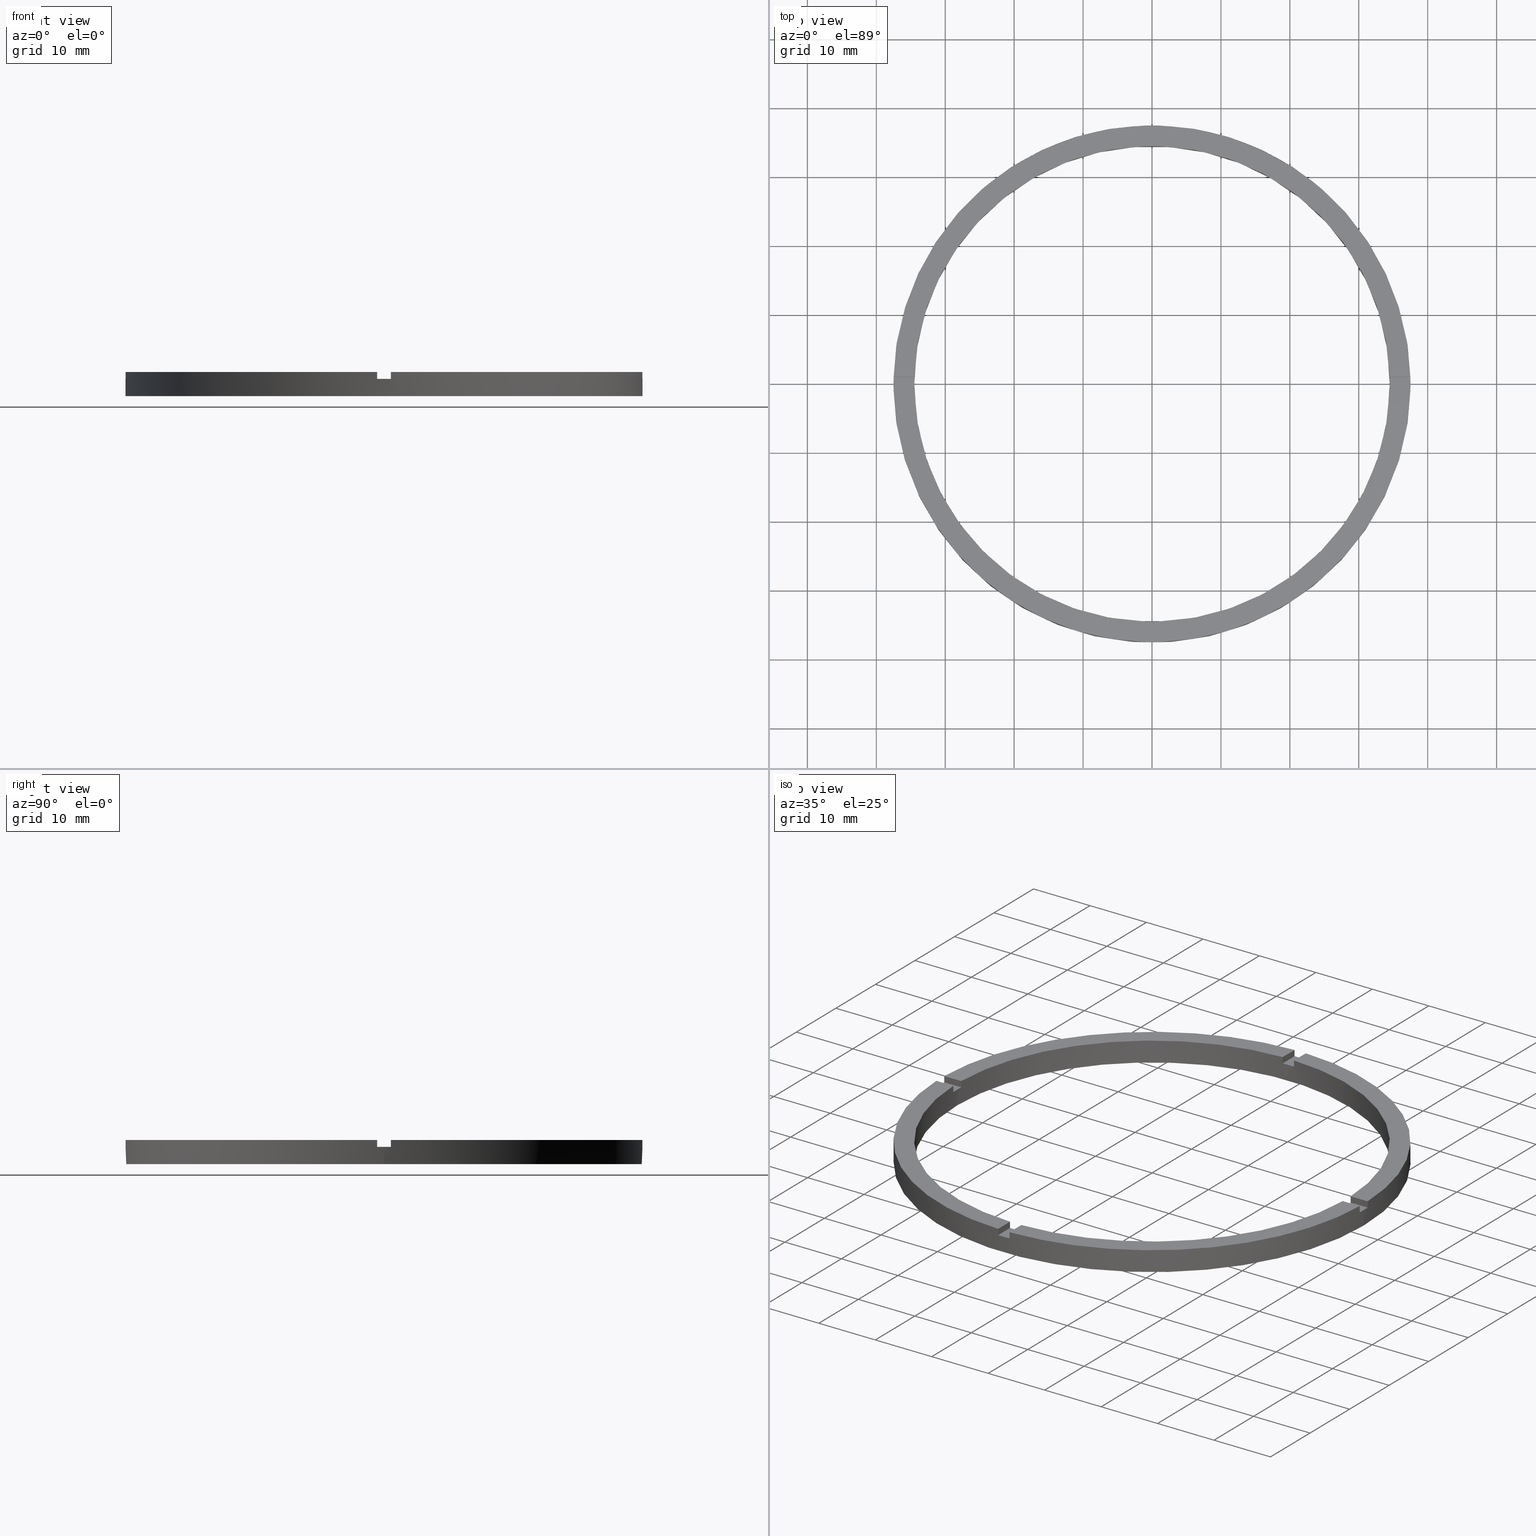
[diagram: canonical four-view strip — front | top / right | iso, engineering-drawing reading convention]
A machine part, canonical four-view strip (front | top / right | iso — engineering-drawing reading convention). The complete STEP part file that produces these views, byte-faithful:
ISO-10303-21;
HEADER;
FILE_DESCRIPTION (( 'STEP AP203' ),
    '1' );
FILE_NAME ('514154.step',
    '2024-12-26T02:42:46',
    ( 'MSI' ),
    ( '' ),
    'SwSTEP 2.0',
    'SolidWorks 2020',
    '' );
FILE_SCHEMA (( 'CONFIG_CONTROL_DESIGN' ));
ENDSEC;

DATA;
#1 = EDGE_CURVE ( 'NONE', #712, #366, #627, .T. ) ;
#2 = EDGE_CURVE ( 'NONE', #450, #456, #379, .T. ) ;
#3 = PLANE ( 'NONE',  #454 ) ;
#4 = DIRECTION ( 'NONE',  ( -1.000000000000000000, -1.951563910473907735E-16, 0.000000000000000000 ) ) ;
#5 = CC_DESIGN_APPROVAL ( #410, ( #257 ) ) ;
#6 = EDGE_CURVE ( 'NONE', #391, #677, #380, .T. ) ;
#7 = VECTOR ( 'NONE', #56, 1000.000000000000000 ) ;
#8 = DIRECTION ( 'NONE',  ( 1.000000000000000000, 0.000000000000000000, 0.000000000000000000 ) ) ;
#9 = CARTESIAN_POINT ( 'NONE',  ( 0.9999999999999746869, 37.48666429545313150, 2.500000000000000000 ) ) ;
#10 = CARTESIAN_POINT ( 'NONE',  ( -37.48666429545312440, -1.000000000000027534, 3.500000000000000000 ) ) ;
#11 = FACE_OUTER_BOUND ( 'NONE', #151, .T. ) ;
#12 = CARTESIAN_POINT ( 'NONE',  ( 0.9999999999998397948, -34.48550420104076153, 3.500000000000000000 ) ) ;
#13 = DIRECTION ( 'NONE',  ( -1.301042606982605074E-16, 1.000000000000000000, -0.000000000000000000 ) ) ;
#14 = AXIS2_PLACEMENT_3D ( 'NONE', #487, #289, #35 ) ;
#15 = VECTOR ( 'NONE', #176, 1000.000000000000000 ) ;
#16 = FACE_OUTER_BOUND ( 'NONE', #89, .T. ) ;
#17 = ADVANCED_FACE ( 'NONE', ( #382 ), #609, .T. ) ;
#18 = AXIS2_PLACEMENT_3D ( 'NONE', #286, #716, #702 ) ;
#19 = LINE ( 'NONE', #103, #15 ) ;
#20 = VECTOR ( 'NONE', #693, 1000.000000000000000 ) ;
#21 = CARTESIAN_POINT ( 'NONE',  ( 0.000000000000000000, 0.000000000000000000, 2.500000000000000000 ) ) ;
#22 = FACE_OUTER_BOUND ( 'NONE', #500, .T. ) ;
#23 = DIRECTION ( 'NONE',  ( -0.000000000000000000, 0.000000000000000000, 1.000000000000000000 ) ) ;
#24 = LINE ( 'NONE', #560, #548 ) ;
#25 = FACE_OUTER_BOUND ( 'NONE', #228, .T. ) ;
#26 = ADVANCED_FACE ( 'NONE', ( #644 ), #421, .F. ) ;
#27 = CARTESIAN_POINT ( 'NONE',  ( -37.48666429545312440, -1.000000000000027534, 2.500000000000000000 ) ) ;
#28 = LINE ( 'NONE', #554, #290 ) ;
#29 = CARTESIAN_POINT ( 'NONE',  ( 37.48666429545313150, 0.9999999999998425704, 3.500000000000000000 ) ) ;
#30 = AXIS2_PLACEMENT_3D ( 'NONE', #58, #139, #757 ) ;
#31 = VECTOR ( 'NONE', #62, 1000.000000000000000 ) ;
#32 = LINE ( 'NONE', #321, #7 ) ;
#33 = CARTESIAN_POINT ( 'NONE',  ( -1.000000000000025313, 34.48550420104075442, 3.500000000000000000 ) ) ;
#34 = LINE ( 'NONE', #247, #306 ) ;
#35 = DIRECTION ( 'NONE',  ( 1.000000000000000000, 1.951563910473907735E-16, 0.000000000000000000 ) ) ;
#36 = CIRCLE ( 'NONE', #122, 37.50000000000000711 ) ;
#37 = CARTESIAN_POINT ( 'NONE',  ( 34.48550420104076153, 0.9999999999998423483, 3.500000000000000000 ) ) ;
#38 = CYLINDRICAL_SURFACE ( 'NONE', #170, 37.50000000000000711 ) ;
#39 = VECTOR ( 'NONE', #557, 1000.000000000000000 ) ;
#40 = EDGE_CURVE ( 'NONE', #755, #392, #679, .T. ) ;
#41 = AXIS2_PLACEMENT_3D ( 'NONE', #575, #181, #568 ) ;
#42 = DIRECTION ( 'NONE',  ( 1.000000000000000000, 0.000000000000000000, 0.000000000000000000 ) ) ;
#43 = CARTESIAN_POINT ( 'NONE',  ( -34.48550420104075442, -1.000000000000026867, 3.500000000000000000 ) ) ;
#44 = DIRECTION ( 'NONE',  ( 0.000000000000000000, 0.000000000000000000, 1.000000000000000000 ) ) ;
#45 = APPROVAL_STATUS ( 'not_yet_approved' ) ;
#46 = CARTESIAN_POINT ( 'NONE',  ( -1.000000000000160316, -34.48550420104075442, 3.500000000000000000 ) ) ;
#47 = EDGE_CURVE ( 'NONE', #746, #715, #659, .T. ) ;
#48 = CARTESIAN_POINT ( 'NONE',  ( -37.50000000000000711, 0.000000000000000000, 0.000000000000000000 ) ) ;
#49 = CARTESIAN_POINT ( 'NONE',  ( 27.49999999999999645, -1.000000000000158096, 2.500000000000000000 ) ) ;
#50 = CIRCLE ( 'NONE', #744, 34.49999999999999289 ) ;
#51 = CARTESIAN_POINT ( 'NONE',  ( 0.000000000000000000, 0.000000000000000000, 2.500000000000000000 ) ) ;
#52 = APPROVAL ( #271, 'δָ��' ) ;
#53 = DESIGN_CONTEXT ( 'detailed design', #104, 'design' ) ;
#54 = LINE ( 'NONE', #561, #576 ) ;
#55 = CIRCLE ( 'NONE', #128, 37.50000000000000711 ) ;
#56 = DIRECTION ( 'NONE',  ( 0.000000000000000000, 0.000000000000000000, 1.000000000000000000 ) ) ;
#57 = VECTOR ( 'NONE', #508, 1000.000000000000000 ) ;
#58 = CARTESIAN_POINT ( 'NONE',  ( 0.000000000000000000, 0.000000000000000000, 3.500000000000000000 ) ) ;
#59 = EDGE_CURVE ( 'NONE', #231, #748, #656, .T. ) ;
#60 = CIRCLE ( 'NONE', #268, 34.49999999999999289 ) ;
#61 = VECTOR ( 'NONE', #683, 1000.000000000000000 ) ;
#62 = DIRECTION ( 'NONE',  ( -0.000000000000000000, -0.000000000000000000, -1.000000000000000000 ) ) ;
#63 = CYLINDRICAL_SURFACE ( 'NONE', #310, 34.49999999999999289 ) ;
#64 = DIRECTION ( 'NONE',  ( 0.000000000000000000, 0.000000000000000000, 1.000000000000000000 ) ) ;
#65 = CARTESIAN_POINT ( 'NONE',  ( -1.000000000000160094, -37.48666429545312440, 3.500000000000000000 ) ) ;
#66 = LINE ( 'NONE', #596, #335 ) ;
#67 = DATE_AND_TIME ( #601, #73 ) ;
#68 = LINE ( 'NONE', #154, #61 ) ;
#69 = EDGE_CURVE ( 'NONE', #370, #212, #160, .T. ) ;
#70 = CARTESIAN_POINT ( 'NONE',  ( -34.48550420104076153, 0.9999999999999731326, 2.500000000000000000 ) ) ;
#71 = PLANE ( 'NONE',  #150 ) ;
#72 = AXIS2_PLACEMENT_3D ( 'NONE', #131, #606, #756 ) ;
#73 = LOCAL_TIME ( 10, 42, 46.00000000000000000, #354 ) ;
#74 = CARTESIAN_POINT ( 'NONE',  ( 0.9999999999998397948, -34.48550420104076153, 3.500000000000000000 ) ) ;
#75 = CALENDAR_DATE ( 2024, 26, 12 ) ;
#76 = CALENDAR_DATE ( 2024, 26, 12 ) ;
#77 = CARTESIAN_POINT ( 'NONE',  ( 0.000000000000000000, 0.000000000000000000, 2.500000000000000000 ) ) ;
#78 =( GEOMETRIC_REPRESENTATION_CONTEXT ( 3 ) GLOBAL_UNCERTAINTY_ASSIGNED_CONTEXT ( ( #761 ) ) GLOBAL_UNIT_ASSIGNED_CONTEXT ( ( #559, #768, #626 ) ) REPRESENTATION_CONTEXT ( 'NONE', 'WORKASPACE' ) );
#79 = VECTOR ( 'NONE', #96, 1000.000000000000000 ) ;
#80 = DIRECTION ( 'NONE',  ( 1.000000000000000000, 0.000000000000000000, -0.000000000000000000 ) ) ;
#81 = EDGE_CURVE ( 'NONE', #475, #684, #156, .T. ) ;
#82 = LINE ( 'NONE', #86, #337 ) ;
#83 = CARTESIAN_POINT ( 'NONE',  ( 0.000000000000000000, 0.000000000000000000, 0.000000000000000000 ) ) ;
#84 = ORIENTED_EDGE ( 'NONE', *, *, #280, .T. ) ;
#85 = APPROVAL_DATE_TIME ( #93, #52 ) ;
#86 = CARTESIAN_POINT ( 'NONE',  ( -1.000000000000160094, -37.48666429545312440, 3.500000000000000000 ) ) ;
#87 = APPROVAL_PERSON_ORGANIZATION ( #597, #52, #650 ) ;
#88 = DATE_AND_TIME ( #602, #368 ) ;
#89 = EDGE_LOOP ( 'NONE', ( #660, #388, #646, #641 ) ) ;
#90 = COORDINATED_UNIVERSAL_TIME_OFFSET ( 8, 0, .AHEAD. ) ;
#91 = COORDINATED_UNIVERSAL_TIME_OFFSET ( 8, 0, .AHEAD. ) ;
#92 = CARTESIAN_POINT ( 'NONE',  ( 0.000000000000000000, 0.000000000000000000, 0.000000000000000000 ) ) ;
#93 = DATE_AND_TIME ( #76, #581 ) ;
#94 = CARTESIAN_POINT ( 'NONE',  ( 0.000000000000000000, 0.000000000000000000, 3.500000000000000000 ) ) ;
#95 = PERSON ( 'δָ��', 'δָ��', 'δָ��', ('δָ��'), ('δָ��'), ('δָ��') ) ;
#96 = DIRECTION ( 'NONE',  ( -0.000000000000000000, -0.000000000000000000, -1.000000000000000000 ) ) ;
#97 = ORIENTED_EDGE ( 'NONE', *, *, #292, .T. ) ;
#98 = ORIENTED_EDGE ( 'NONE', *, *, #1, .F. ) ;
#99 = ORIENTED_EDGE ( 'NONE', *, *, #765, .F. ) ;
#100 = ORIENTED_EDGE ( 'NONE', *, *, #477, .F. ) ;
#101 = APPLICATION_PROTOCOL_DEFINITION ( 'international standard', 'config_control_design', 1994, #104 ) ;
#102 = ORIENTED_EDGE ( 'NONE', *, *, #360, .F. ) ;
#103 = CARTESIAN_POINT ( 'NONE',  ( 0.9999999999999746869, 37.48666429545313150, 3.500000000000000000 ) ) ;
#104 = APPLICATION_CONTEXT ( 'configuration controlled 3d designs of mechanical parts and assemblies' ) ;
#105 = PRODUCT_RELATED_PRODUCT_CATEGORY ( 'detail', '', ( #187 ) ) ;
#106 = VERTEX_POINT ( 'NONE', #452 ) ;
#107 = ORIENTED_EDGE ( 'NONE', *, *, #316, .T. ) ;
#108 = EDGE_CURVE ( 'NONE', #423, #741, #140, .T. ) ;
#109 = ORIENTED_EDGE ( 'NONE', *, *, #721, .F. ) ;
#110 = CARTESIAN_POINT ( 'NONE',  ( 0.000000000000000000, 0.000000000000000000, 3.500000000000000000 ) ) ;
#111 = ORIENTED_EDGE ( 'NONE', *, *, #191, .F. ) ;
#112 = CARTESIAN_POINT ( 'NONE',  ( -1.000000000000025313, 27.50000000000000355, 2.500000000000000000 ) ) ;
#113 = EDGE_LOOP ( 'NONE', ( #459, #733, #363, #645 ) ) ;
#114 = ORIENTED_EDGE ( 'NONE', *, *, #260, .F. ) ;
#115 = ORIENTED_EDGE ( 'NONE', *, *, #563, .T. ) ;
#116 = CC_DESIGN_PERSON_AND_ORGANIZATION_ASSIGNMENT ( #346, #773, ( #187 ) ) ;
#117 = ORIENTED_EDGE ( 'NONE', *, *, #301, .F. ) ;
#118 = ORIENTED_EDGE ( 'NONE', *, *, #490, .T. ) ;
#119 = EDGE_CURVE ( 'NONE', #475, #652, #158, .T. ) ;
#120 = CARTESIAN_POINT ( 'NONE',  ( 0.000000000000000000, 0.000000000000000000, 3.500000000000000000 ) ) ;
#121 = ORIENTED_EDGE ( 'NONE', *, *, #440, .F. ) ;
#122 = AXIS2_PLACEMENT_3D ( 'NONE', #411, #244, #513 ) ;
#123 = EDGE_LOOP ( 'NONE', ( #718, #203, #594, #673, #725, #98, #97, #649, #745, #378, #198, #100 ) ) ;
#124 = ORIENTED_EDGE ( 'NONE', *, *, #191, .T. ) ;
#125 = PLANE ( 'NONE',  #566 ) ;
#126 = CARTESIAN_POINT ( 'NONE',  ( 0.9999999999998400169, -37.48666429545313150, 2.500000000000000000 ) ) ;
#127 = CARTESIAN_POINT ( 'NONE',  ( 34.48550420104075442, -1.000000000000157652, 3.500000000000000000 ) ) ;
#128 = AXIS2_PLACEMENT_3D ( 'NONE', #422, #175, #408 ) ;
#129 = ORIENTED_EDGE ( 'NONE', *, *, #612, .T. ) ;
#130 = DIRECTION ( 'NONE',  ( 1.000000000000000000, 6.505213034913025371E-17, 0.000000000000000000 ) ) ;
#131 = CARTESIAN_POINT ( 'NONE',  ( -1.000000000000025313, 27.50000000000000355, 2.500000000000000000 ) ) ;
#132 = ORIENTED_EDGE ( 'NONE', *, *, #640, .F. ) ;
#133 = AXIS2_PLACEMENT_3D ( 'NONE', #49, #724, #729 ) ;
#134 = DIRECTION ( 'NONE',  ( 1.000000000000000000, 0.000000000000000000, 0.000000000000000000 ) ) ;
#135 = ORIENTED_EDGE ( 'NONE', *, *, #2, .T. ) ;
#136 = ORIENTED_EDGE ( 'NONE', *, *, #303, .T. ) ;
#137 = ORIENTED_EDGE ( 'NONE', *, *, #2, .F. ) ;
#138 = ORIENTED_EDGE ( 'NONE', *, *, #721, .T. ) ;
#139 = DIRECTION ( 'NONE',  ( 0.000000000000000000, 0.000000000000000000, 1.000000000000000000 ) ) ;
#140 = LINE ( 'NONE', #622, #424 ) ;
#141 = DIRECTION ( 'NONE',  ( -0.000000000000000000, 0.000000000000000000, 1.000000000000000000 ) ) ;
#142 = ORIENTED_EDGE ( 'NONE', *, *, #732, .F. ) ;
#143 = ADVANCED_FACE ( 'NONE', ( #685, #164 ), #71, .F. ) ;
#144 = ORIENTED_EDGE ( 'NONE', *, *, #691, .T. ) ;
#145 = CIRCLE ( 'NONE', #530, 34.49999999999999289 ) ;
#146 = FACE_OUTER_BOUND ( 'NONE', #657, .T. ) ;
#147 = CARTESIAN_POINT ( 'NONE',  ( 0.9999999999999746869, 27.50000000000000355, 2.500000000000000000 ) ) ;
#148 = CARTESIAN_POINT ( 'NONE',  ( -1.000000000000161204, -27.50000000000018474, 2.500000000000000000 ) ) ;
#149 = ORIENTED_EDGE ( 'NONE', *, *, #6, .T. ) ;
#150 = AXIS2_PLACEMENT_3D ( 'NONE', #296, #543, #426 ) ;
#151 = EDGE_LOOP ( 'NONE', ( #226, #114, #614, #479 ) ) ;
#152 = EDGE_LOOP ( 'NONE', ( #107, #630, #144, #385, #727, #185 ) ) ;
#153 = ORIENTED_EDGE ( 'NONE', *, *, #722, .T. ) ;
#154 = CARTESIAN_POINT ( 'NONE',  ( 34.49999999999999289, 4.225031457058367344E-15, 3.500000000000000000 ) ) ;
#155 = EDGE_CURVE ( 'NONE', #665, #361, #145, .T. ) ;
#156 = CIRCLE ( 'NONE', #782, 37.50000000000000711 ) ;
#157 = ORIENTED_EDGE ( 'NONE', *, *, #691, .F. ) ;
#158 = LINE ( 'NONE', #704, #429 ) ;
#159 = ORIENTED_EDGE ( 'NONE', *, *, #405, .F. ) ;
#160 = LINE ( 'NONE', #617, #675 ) ;
#161 = DIRECTION ( 'NONE',  ( 0.000000000000000000, 0.000000000000000000, 1.000000000000000000 ) ) ;
#162 = ADVANCED_FACE ( 'NONE', ( #668 ), #519, .F. ) ;
#163 = ORIENTED_EDGE ( 'NONE', *, *, #375, .T. ) ;
#164 = FACE_BOUND ( 'NONE', #485, .T. ) ;
#165 = FACE_OUTER_BOUND ( 'NONE', #208, .T. ) ;
#166 = DIRECTION ( 'NONE',  ( 1.000000000000000000, 0.000000000000000000, -0.000000000000000000 ) ) ;
#167 = EDGE_LOOP ( 'NONE', ( #692, #471, #159, #750 ) ) ;
#168 = LINE ( 'NONE', #694, #690 ) ;
#169 = CARTESIAN_POINT ( 'NONE',  ( 0.000000000000000000, 0.000000000000000000, 3.500000000000000000 ) ) ;
#170 = AXIS2_PLACEMENT_3D ( 'NONE', #496, #688, #533 ) ;
#171 = FACE_OUTER_BOUND ( 'NONE', #194, .T. ) ;
#172 = CARTESIAN_POINT ( 'NONE',  ( -1.000000000000161204, -27.50000000000018474, 3.500000000000000000 ) ) ;
#173 = CARTESIAN_POINT ( 'NONE',  ( -37.50000000000000711, 0.000000000000000000, 3.500000000000000000 ) ) ;
#174 = VECTOR ( 'NONE', #252, 1000.000000000000000 ) ;
#175 = DIRECTION ( 'NONE',  ( 0.000000000000000000, -0.000000000000000000, 1.000000000000000000 ) ) ;
#176 = DIRECTION ( 'NONE',  ( 0.000000000000000000, 0.000000000000000000, 1.000000000000000000 ) ) ;
#177 = CIRCLE ( 'NONE', #364, 34.49999999999999289 ) ;
#178 = AXIS2_PLACEMENT_3D ( 'NONE', #92, #161, #431 ) ;
#179 = DIRECTION ( 'NONE',  ( 0.000000000000000000, 0.000000000000000000, 1.000000000000000000 ) ) ;
#180 = CARTESIAN_POINT ( 'NONE',  ( 0.9999999999998400169, -37.48666429545313150, 3.500000000000000000 ) ) ;
#181 = DIRECTION ( 'NONE',  ( 0.000000000000000000, 0.000000000000000000, 1.000000000000000000 ) ) ;
#182 = AXIS2_PLACEMENT_3D ( 'NONE', #207, #256, #216 ) ;
#183 = VERTEX_POINT ( 'NONE', #481 ) ;
#184 = ADVANCED_FACE ( 'NONE', ( #146 ), #714, .F. ) ;
#185 = ORIENTED_EDGE ( 'NONE', *, *, #505, .T. ) ;
#186 = DIRECTION ( 'NONE',  ( 0.000000000000000000, 0.000000000000000000, 1.000000000000000000 ) ) ;
#187 = PRODUCT ( '514154', '514154', '', ( #275 ) ) ;
#188 = DIRECTION ( 'NONE',  ( 0.000000000000000000, 0.000000000000000000, 1.000000000000000000 ) ) ;
#189 = ORIENTED_EDGE ( 'NONE', *, *, #771, .T. ) ;
#190 = EDGE_CURVE ( 'NONE', #775, #486, #670, .T. ) ;
#191 = EDGE_CURVE ( 'NONE', #480, #183, #695, .T. ) ;
#192 = AXIS2_PLACEMENT_3D ( 'NONE', #94, #44, #492 ) ;
#193 = ORIENTED_EDGE ( 'NONE', *, *, #81, .T. ) ;
#194 = EDGE_LOOP ( 'NONE', ( #358, #84, #109, #111 ) ) ;
#195 = CARTESIAN_POINT ( 'NONE',  ( 0.9999999999998400169, -37.48666429545313150, 3.500000000000000000 ) ) ;
#196 = PLANE ( 'NONE',  #72 ) ;
#197 = DIRECTION ( 'NONE',  ( -0.000000000000000000, -0.000000000000000000, -1.000000000000000000 ) ) ;
#198 = ORIENTED_EDGE ( 'NONE', *, *, #447, .T. ) ;
#199 = CARTESIAN_POINT ( 'NONE',  ( 0.000000000000000000, 0.000000000000000000, 3.500000000000000000 ) ) ;
#200 = ORIENTED_EDGE ( 'NONE', *, *, #607, .F. ) ;
#201 = ORIENTED_EDGE ( 'NONE', *, *, #320, .F. ) ;
#202 = PRODUCT_DEFINITION ( 'δ֪', '', #257, #53 ) ;
#203 = ORIENTED_EDGE ( 'NONE', *, *, #666, .T. ) ;
#204 = CARTESIAN_POINT ( 'NONE',  ( -1.000000000000025313, 34.48550420104075442, 2.500000000000000000 ) ) ;
#205 = DIRECTION ( 'NONE',  ( 1.301042606982605074E-16, -1.000000000000000000, 0.000000000000000000 ) ) ;
#206 = EDGE_CURVE ( 'NONE', #775, #770, #168, .T. ) ;
#207 = CARTESIAN_POINT ( 'NONE',  ( 0.000000000000000000, 0.000000000000000000, 3.500000000000000000 ) ) ;
#208 = EDGE_LOOP ( 'NONE', ( #728, #713, #102, #357 ) ) ;
#209 = AXIS2_PLACEMENT_3D ( 'NONE', #633, #230, #80 ) ;
#210 = CARTESIAN_POINT ( 'NONE',  ( -37.48666429545313150, 0.9999999999999724665, 2.500000000000000000 ) ) ;
#211 = ORIENTED_EDGE ( 'NONE', *, *, #521, .T. ) ;
#212 = VERTEX_POINT ( 'NONE', #495 ) ;
#213 = ORIENTED_EDGE ( 'NONE', *, *, #592, .T. ) ;
#214 = CARTESIAN_POINT ( 'NONE',  ( 0.9999999999999746869, 27.50000000000000355, 2.500000000000000000 ) ) ;
#215 = DIRECTION ( 'NONE',  ( -1.951563910473907735E-16, 1.000000000000000000, 0.000000000000000000 ) ) ;
#216 = DIRECTION ( 'NONE',  ( -1.000000000000000000, 0.000000000000000000, 0.000000000000000000 ) ) ;
#217 = ORIENTED_EDGE ( 'NONE', *, *, #206, .F. ) ;
#218 = ORIENTED_EDGE ( 'NONE', *, *, #69, .T. ) ;
#219 = ORIENTED_EDGE ( 'NONE', *, *, #303, .F. ) ;
#220 = ORIENTED_EDGE ( 'NONE', *, *, #507, .T. ) ;
#221 = ORIENTED_EDGE ( 'NONE', *, *, #245, .F. ) ;
#222 = CARTESIAN_POINT ( 'NONE',  ( 0.000000000000000000, 0.000000000000000000, 2.500000000000000000 ) ) ;
#223 = ORIENTED_EDGE ( 'NONE', *, *, #654, .T. ) ;
#224 = EDGE_LOOP ( 'NONE', ( #428, #476, #399, #137 ) ) ;
#225 = ADVANCED_FACE ( 'NONE', ( #165 ), #196, .F. ) ;
#226 = ORIENTED_EDGE ( 'NONE', *, *, #528, .F. ) ;
#227 = DIRECTION ( 'NONE',  ( 1.000000000000000000, 1.301042606982605074E-16, 0.000000000000000000 ) ) ;
#228 = EDGE_LOOP ( 'NONE', ( #374, #671, #135, #117, #213, #648, #153, #201, #248, #774, #499, #413 ) ) ;
#229 = CC_DESIGN_SECURITY_CLASSIFICATION ( #769, ( #257 ) ) ;
#230 = DIRECTION ( 'NONE',  ( 0.000000000000000000, 0.000000000000000000, 1.000000000000000000 ) ) ;
#231 = VERTEX_POINT ( 'NONE', #586 ) ;
#232 = DATE_TIME_ROLE ( 'classification_date' ) ;
#233 = ORIENTED_EDGE ( 'NONE', *, *, #40, .T. ) ;
#234 = VERTEX_POINT ( 'NONE', #9 ) ;
#235 = CARTESIAN_POINT ( 'NONE',  ( -37.48666429545312440, -1.000000000000027534, 3.500000000000000000 ) ) ;
#236 = EDGE_CURVE ( 'NONE', #391, #480, #697, .T. ) ;
#237 = VERTEX_POINT ( 'NONE', #259 ) ;
#238 = CARTESIAN_POINT ( 'NONE',  ( 0.9999999999999746869, 34.48550420104076153, 3.500000000000000000 ) ) ;
#239 = APPLICATION_PROTOCOL_DEFINITION ( 'international standard', 'config_control_design', 1994, #283 ) ;
#240 = DIRECTION ( 'NONE',  ( 0.000000000000000000, 0.000000000000000000, 1.000000000000000000 ) ) ;
#241 = PLANE ( 'NONE',  #569 ) ;
#242 = PERSON_AND_ORGANIZATION_ROLE ( 'creator' ) ;
#243 = AXIS2_PLACEMENT_3D ( 'NONE', #738, #526, #246 ) ;
#244 = DIRECTION ( 'NONE',  ( 0.000000000000000000, 0.000000000000000000, 1.000000000000000000 ) ) ;
#245 = EDGE_CURVE ( 'NONE', #715, #366, #698, .T. ) ;
#246 = DIRECTION ( 'NONE',  ( 1.000000000000000000, 0.000000000000000000, -0.000000000000000000 ) ) ;
#247 = CARTESIAN_POINT ( 'NONE',  ( -27.50000000000019185, -1.000000000000025535, 3.500000000000000000 ) ) ;
#248 = ORIENTED_EDGE ( 'NONE', *, *, #47, .T. ) ;
#249 = CARTESIAN_POINT ( 'NONE',  ( 0.000000000000000000, 0.000000000000000000, 3.500000000000000000 ) ) ;
#250 = ADVANCED_FACE ( 'NONE', ( #436 ), #365, .T. ) ;
#251 = DIRECTION ( 'NONE',  ( 0.000000000000000000, -0.000000000000000000, 1.000000000000000000 ) ) ;
#252 = DIRECTION ( 'NONE',  ( -0.000000000000000000, -1.000000000000000000, -0.000000000000000000 ) ) ;
#253 = ORIENTED_EDGE ( 'NONE', *, *, #506, .F. ) ;
#254 = DIRECTION ( 'NONE',  ( 0.000000000000000000, 0.000000000000000000, 1.000000000000000000 ) ) ;
#255 = CARTESIAN_POINT ( 'NONE',  ( 0.000000000000000000, 0.000000000000000000, 2.500000000000000000 ) ) ;
#256 = DIRECTION ( 'NONE',  ( -0.000000000000000000, -0.000000000000000000, -1.000000000000000000 ) ) ;
#257 = PRODUCT_DEFINITION_FORMATION_WITH_SPECIFIED_SOURCE ( '�κ�', '', #187, .NOT_KNOWN. ) ;
#258 = CARTESIAN_POINT ( 'NONE',  ( 0.9999999999999746869, 27.50000000000000355, 3.500000000000000000 ) ) ;
#259 = CARTESIAN_POINT ( 'NONE',  ( 0.9999999999999746869, 34.48550420104076153, 2.500000000000000000 ) ) ;
#260 = EDGE_CURVE ( 'NONE', #370, #467, #432, .T. ) ;
#261 = DIRECTION ( 'NONE',  ( -0.000000000000000000, -0.000000000000000000, -1.000000000000000000 ) ) ;
#262 = PLANE ( 'NONE',  #624 ) ;
#263 = EDGE_CURVE ( 'NONE', #754, #687, #177, .T. ) ;
#264 = AXIS2_PLACEMENT_3D ( 'NONE', #148, #291, #205 ) ;
#265 = ADVANCED_FACE ( 'NONE', ( #171 ), #125, .T. ) ;
#266 = DIRECTION ( 'NONE',  ( -0.000000000000000000, -0.000000000000000000, -1.000000000000000000 ) ) ;
#267 = CARTESIAN_POINT ( 'NONE',  ( 0.000000000000000000, 0.000000000000000000, 0.000000000000000000 ) ) ;
#268 = AXIS2_PLACEMENT_3D ( 'NONE', #83, #515, #42 ) ;
#269 = PLANE ( 'NONE',  #270 ) ;
#270 = AXIS2_PLACEMENT_3D ( 'NONE', #255, #376, #536 ) ;
#271 = APPROVAL_STATUS ( 'not_yet_approved' ) ;
#272 = PLANE ( 'NONE',  #613 ) ;
#273 = CARTESIAN_POINT ( 'NONE',  ( 27.49999999999999645, 0.9999999999998419042, 2.500000000000000000 ) ) ;
#274 = CARTESIAN_POINT ( 'NONE',  ( 0.000000000000000000, 0.000000000000000000, 2.500000000000000000 ) ) ;
#275 = MECHANICAL_CONTEXT ( 'NONE', #283, 'mechanical' ) ;
#276 = FACE_OUTER_BOUND ( 'NONE', #419, .T. ) ;
#277 = VECTOR ( 'NONE', #711, 1000.000000000000000 ) ;
#278 = CARTESIAN_POINT ( 'NONE',  ( 0.000000000000000000, 0.000000000000000000, 2.500000000000000000 ) ) ;
#279 = DIRECTION ( 'NONE',  ( -0.000000000000000000, -0.000000000000000000, -1.000000000000000000 ) ) ;
#280 = EDGE_CURVE ( 'NONE', #391, #652, #700, .T. ) ;
#281 = CIRCLE ( 'NONE', #192, 37.50000000000000711 ) ;
#282 = LINE ( 'NONE', #127, #295 ) ;
#283 = APPLICATION_CONTEXT ( 'configuration controlled 3d designs of mechanical parts and assemblies' ) ;
#284 = VECTOR ( 'NONE', #631, 1000.000000000000000 ) ;
#285 = VECTOR ( 'NONE', #590, 1000.000000000000000 ) ;
#286 = CARTESIAN_POINT ( 'NONE',  ( 0.000000000000000000, 0.000000000000000000, 2.500000000000000000 ) ) ;
#287 = LINE ( 'NONE', #550, #20 ) ;
#288 = CIRCLE ( 'NONE', #734, 34.49999999999999289 ) ;
#289 = DIRECTION ( 'NONE',  ( 1.951563910473907735E-16, -1.000000000000000000, 0.000000000000000000 ) ) ;
#290 = VECTOR ( 'NONE', #749, 1000.000000000000000 ) ;
#291 = DIRECTION ( 'NONE',  ( -1.000000000000000000, -1.301042606982605074E-16, 0.000000000000000000 ) ) ;
#292 = EDGE_CURVE ( 'NONE', #712, #486, #438, .T. ) ;
#293 = CIRCLE ( 'NONE', #565, 37.50000000000000711 ) ;
#294 = CIRCLE ( 'NONE', #509, 37.50000000000000711 ) ;
#295 = VECTOR ( 'NONE', #740, 1000.000000000000000 ) ;
#296 = CARTESIAN_POINT ( 'NONE',  ( 0.000000000000000000, 0.000000000000000000, 0.000000000000000000 ) ) ;
#297 = CIRCLE ( 'NONE', #747, 37.50000000000000711 ) ;
#298 = CARTESIAN_POINT ( 'NONE',  ( 0.000000000000000000, 0.000000000000000000, 3.500000000000000000 ) ) ;
#299 = CC_DESIGN_PERSON_AND_ORGANIZATION_ASSIGNMENT ( #588, #242, ( #202 ) ) ;
#300 = CIRCLE ( 'NONE', #446, 34.49999999999999289 ) ;
#301 = EDGE_CURVE ( 'NONE', #755, #456, #281, .T. ) ;
#302 = LINE ( 'NONE', #195, #546 ) ;
#303 = EDGE_CURVE ( 'NONE', #409, #417, #294, .T. ) ;
#304 = AXIS2_PLACEMENT_3D ( 'NONE', #278, #326, #667 ) ;
#305 = DIRECTION ( 'NONE',  ( 0.000000000000000000, 0.000000000000000000, 1.000000000000000000 ) ) ;
#306 = VECTOR ( 'NONE', #669, 1000.000000000000000 ) ;
#307 = ADVANCED_FACE ( 'NONE', ( #16 ), #272, .T. ) ;
#308 = CIRCLE ( 'NONE', #458, 37.50000000000000711 ) ;
#309 = DIRECTION ( 'NONE',  ( 0.000000000000000000, 0.000000000000000000, 1.000000000000000000 ) ) ;
#310 = AXIS2_PLACEMENT_3D ( 'NONE', #759, #317, #441 ) ;
#311 = DIRECTION ( 'NONE',  ( 0.000000000000000000, 0.000000000000000000, 1.000000000000000000 ) ) ;
#312 = DIRECTION ( 'NONE',  ( -0.000000000000000000, -0.000000000000000000, -1.000000000000000000 ) ) ;
#313 = CARTESIAN_POINT ( 'NONE',  ( 27.49999999999999645, 0.9999999999998419042, 3.500000000000000000 ) ) ;
#314 = CARTESIAN_POINT ( 'NONE',  ( 37.48666429545312440, -1.000000000000157430, 3.500000000000000000 ) ) ;
#315 = CARTESIAN_POINT ( 'NONE',  ( 37.48666429545313150, 0.9999999999998425704, 3.500000000000000000 ) ) ;
#316 = EDGE_CURVE ( 'NONE', #450, #106, #525, .T. ) ;
#317 = DIRECTION ( 'NONE',  ( -0.000000000000000000, -0.000000000000000000, -1.000000000000000000 ) ) ;
#318 = DIRECTION ( 'NONE',  ( -6.505213034913025371E-17, 1.000000000000000000, 0.000000000000000000 ) ) ;
#319 = EDGE_CURVE ( 'NONE', #486, #430, #529, .T. ) ;
#320 = EDGE_CURVE ( 'NONE', #746, #430, #36, .T. ) ;
#321 = CARTESIAN_POINT ( 'NONE',  ( -34.48550420104076153, 0.9999999999999731326, 3.500000000000000000 ) ) ;
#322 = FACE_OUTER_BOUND ( 'NONE', #152, .T. ) ;
#323 = PERSON_AND_ORGANIZATION_ROLE ( 'creator' ) ;
#324 = FACE_OUTER_BOUND ( 'NONE', #396, .T. ) ;
#325 = CC_DESIGN_APPROVAL ( #562, ( #202 ) ) ;
#326 = DIRECTION ( 'NONE',  ( 0.000000000000000000, 0.000000000000000000, 1.000000000000000000 ) ) ;
#327 = DIRECTION ( 'NONE',  ( -1.000000000000000000, -6.505213034913025371E-17, -0.000000000000000000 ) ) ;
#328 = FACE_OUTER_BOUND ( 'NONE', #743, .T. ) ;
#329 = CARTESIAN_POINT ( 'NONE',  ( -34.49999999999999289, 0.000000000000000000, 0.000000000000000000 ) ) ;
#330 = VECTOR ( 'NONE', #327, 1000.000000000000000 ) ;
#331 = VECTOR ( 'NONE', #402, 1000.000000000000000 ) ;
#332 = DIRECTION ( 'NONE',  ( 0.000000000000000000, 0.000000000000000000, 1.000000000000000000 ) ) ;
#333 = PERSON_AND_ORGANIZATION ( #95, #587 ) ;
#334 = CARTESIAN_POINT ( 'NONE',  ( -34.48550420104075442, -1.000000000000026867, 3.500000000000000000 ) ) ;
#335 = VECTOR ( 'NONE', #130, 1000.000000000000000 ) ;
#336 = DATE_AND_TIME ( #75, #338 ) ;
#337 = VECTOR ( 'NONE', #772, 1000.000000000000000 ) ;
#338 = LOCAL_TIME ( 10, 42, 46.00000000000000000, #90 ) ;
#339 = AXIS2_PLACEMENT_3D ( 'NONE', #21, #251, #394 ) ;
#340 = COORDINATED_UNIVERSAL_TIME_OFFSET ( 8, 0, .AHEAD. ) ;
#341 = LINE ( 'NONE', #173, #573 ) ;
#342 = DIRECTION ( 'NONE',  ( 1.000000000000000000, 0.000000000000000000, -0.000000000000000000 ) ) ;
#343 = COORDINATED_UNIVERSAL_TIME_OFFSET ( 8, 0, .AHEAD. ) ;
#344 = LINE ( 'NONE', #273, #330 ) ;
#345 = APPROVAL_ROLE ( '' ) ;
#346 = PERSON_AND_ORGANIZATION ( #95, #587 ) ;
#347 = ADVANCED_BREP_SHAPE_REPRESENTATION ( '514154', ( #434, #178 ), #78 ) ;
#348 = APPROVAL_PERSON_ORGANIZATION ( #593, #562, #345 ) ;
#349 = PERSON_AND_ORGANIZATION ( #95, #587 ) ;
#350 = LOCAL_TIME ( 10, 42, 46.00000000000000000, #343 ) ;
#351 = DIRECTION ( 'NONE',  ( 1.000000000000000000, 0.000000000000000000, 0.000000000000000000 ) ) ;
#352 = APPROVAL_DATE_TIME ( #88, #562 ) ;
#353 = DIRECTION ( 'NONE',  ( 1.301042606982605074E-16, -1.000000000000000000, 0.000000000000000000 ) ) ;
#354 = COORDINATED_UNIVERSAL_TIME_OFFSET ( 8, 0, .AHEAD. ) ;
#355 = EDGE_CURVE ( 'NONE', #237, #467, #24, .T. ) ;
#356 = CARTESIAN_POINT ( 'NONE',  ( 37.48666429545313150, 0.9999999999998425704, 2.500000000000000000 ) ) ;
#357 = ORIENTED_EDGE ( 'NONE', *, *, #6, .F. ) ;
#358 = ORIENTED_EDGE ( 'NONE', *, *, #236, .F. ) ;
#359 = DIRECTION ( 'NONE',  ( 1.000000000000000000, 0.000000000000000000, 0.000000000000000000 ) ) ;
#360 = EDGE_CURVE ( 'NONE', #677, #664, #532, .T. ) ;
#361 = VERTEX_POINT ( 'NONE', #709 ) ;
#362 = EDGE_LOOP ( 'NONE', ( #223, #218, #157, #472 ) ) ;
#363 = ORIENTED_EDGE ( 'NONE', *, *, #528, .T. ) ;
#364 = AXIS2_PLACEMENT_3D ( 'NONE', #493, #186, #582 ) ;
#365 = PLANE ( 'NONE',  #243 ) ;
#366 = VERTEX_POINT ( 'NONE', #516 ) ;
#367 = DIRECTION ( 'NONE',  ( 0.000000000000000000, 0.000000000000000000, 1.000000000000000000 ) ) ;
#368 = LOCAL_TIME ( 10, 42, 46.00000000000000000, #91 ) ;
#369 = DIRECTION ( 'NONE',  ( 1.000000000000000000, 0.000000000000000000, 0.000000000000000000 ) ) ;
#370 = VERTEX_POINT ( 'NONE', #37 ) ;
#371 = VECTOR ( 'NONE', #64, 1000.000000000000000 ) ;
#372 = DIRECTION ( 'NONE',  ( 1.000000000000000000, 0.000000000000000000, 0.000000000000000000 ) ) ;
#373 = EDGE_CURVE ( 'NONE', #234, #403, #19, .T. ) ;
#374 = ORIENTED_EDGE ( 'NONE', *, *, #563, .F. ) ;
#375 = EDGE_CURVE ( 'NONE', #684, #715, #524, .T. ) ;
#376 = DIRECTION ( 'NONE',  ( 0.000000000000000000, 0.000000000000000000, 1.000000000000000000 ) ) ;
#377 = CARTESIAN_POINT ( 'NONE',  ( -1.000000000000025313, 37.48666429545312440, 3.500000000000000000 ) ) ;
#378 = ORIENTED_EDGE ( 'NONE', *, *, #521, .F. ) ;
#379 = LINE ( 'NONE', #314, #371 ) ;
#380 = LINE ( 'NONE', #377, #642 ) ;
#381 = ORIENTED_EDGE ( 'NONE', *, *, #427, .T. ) ;
#382 = FACE_OUTER_BOUND ( 'NONE', #489, .T. ) ;
#383 = DIRECTION ( 'NONE',  ( 0.000000000000000000, 0.000000000000000000, -1.000000000000000000 ) ) ;
#384 = CARTESIAN_POINT ( 'NONE',  ( -27.50000000000019185, -1.000000000000025535, 2.500000000000000000 ) ) ;
#385 = ORIENTED_EDGE ( 'NONE', *, *, #427, .F. ) ;
#386 = ORIENTED_EDGE ( 'NONE', *, *, #666, .F. ) ;
#387 = ADVANCED_FACE ( 'NONE', ( #25 ), #38, .T. ) ;
#388 = ORIENTED_EDGE ( 'NONE', *, *, #292, .F. ) ;
#389 = DIRECTION ( 'NONE',  ( 1.000000000000000000, 0.000000000000000000, 0.000000000000000000 ) ) ;
#390 = ORIENTED_EDGE ( 'NONE', *, *, #765, .T. ) ;
#391 = VERTEX_POINT ( 'NONE', #398 ) ;
#392 = VERTEX_POINT ( 'NONE', #74 ) ;
#393 = VECTOR ( 'NONE', #197, 1000.000000000000000 ) ;
#394 = DIRECTION ( 'NONE',  ( 1.000000000000000000, 0.000000000000000000, 0.000000000000000000 ) ) ;
#395 = DIRECTION ( 'NONE',  ( 0.000000000000000000, 0.000000000000000000, 1.000000000000000000 ) ) ;
#396 = EDGE_LOOP ( 'NONE', ( #608, #115, #136, #620, #618, #661, #464, #149, #99, #414, #453, #397 ) ) ;
#397 = ORIENTED_EDGE ( 'NONE', *, *, #404, .T. ) ;
#398 = CARTESIAN_POINT ( 'NONE',  ( -1.000000000000025313, 37.48666429545312440, 3.500000000000000000 ) ) ;
#399 = ORIENTED_EDGE ( 'NONE', *, *, #640, .T. ) ;
#400 = ORIENTED_EDGE ( 'NONE', *, *, #653, .F. ) ;
#401 = CC_DESIGN_APPROVAL ( #52, ( #769 ) ) ;
#402 = DIRECTION ( 'NONE',  ( 0.000000000000000000, 1.000000000000000000, 0.000000000000000000 ) ) ;
#403 = VERTEX_POINT ( 'NONE', #599 ) ;
#404 = EDGE_CURVE ( 'NONE', #462, #491, #531, .T. ) ;
#405 = EDGE_CURVE ( 'NONE', #775, #741, #535, .T. ) ;
#406 = CARTESIAN_POINT ( 'NONE',  ( 0.000000000000000000, 0.000000000000000000, 2.500000000000000000 ) ) ;
#407 = VECTOR ( 'NONE', #261, 1000.000000000000000 ) ;
#408 = DIRECTION ( 'NONE',  ( 1.000000000000000000, 0.000000000000000000, 0.000000000000000000 ) ) ;
#409 = VERTEX_POINT ( 'NONE', #611 ) ;
#410 = APPROVAL ( #45, 'δָ��' ) ;
#411 = CARTESIAN_POINT ( 'NONE',  ( 0.000000000000000000, 0.000000000000000000, 3.500000000000000000 ) ) ;
#412 = CARTESIAN_POINT ( 'NONE',  ( 0.9999999999998397948, -34.48550420104076153, 2.500000000000000000 ) ) ;
#413 = ORIENTED_EDGE ( 'NONE', *, *, #440, .T. ) ;
#414 = ORIENTED_EDGE ( 'NONE', *, *, #373, .T. ) ;
#415 = AXIS2_PLACEMENT_3D ( 'NONE', #537, #215, #4 ) ;
#416 = APPROVAL_ROLE ( '' ) ;
#417 = VERTEX_POINT ( 'NONE', #48 ) ;
#418 = DIRECTION ( 'NONE',  ( 1.000000000000000000, 0.000000000000000000, -0.000000000000000000 ) ) ;
#419 = EDGE_LOOP ( 'NONE', ( #233, #211, #681, #435 ) ) ;
#420 = ORIENTED_EDGE ( 'NONE', *, *, #260, .T. ) ;
#421 = CYLINDRICAL_SURFACE ( 'NONE', #182, 34.49999999999999289 ) ;
#422 = CARTESIAN_POINT ( 'NONE',  ( 0.000000000000000000, 0.000000000000000000, 2.500000000000000000 ) ) ;
#423 = VERTEX_POINT ( 'NONE', #126 ) ;
#424 = VECTOR ( 'NONE', #13, 1000.000000000000000 ) ;
#425 = AXIS2_PLACEMENT_3D ( 'NONE', #169, #463, #706 ) ;
#426 = DIRECTION ( 'NONE',  ( 1.000000000000000000, 0.000000000000000000, -0.000000000000000000 ) ) ;
#427 = EDGE_CURVE ( 'NONE', #687, #212, #300, .T. ) ;
#428 = ORIENTED_EDGE ( 'NONE', *, *, #505, .F. ) ;
#429 = VECTOR ( 'NONE', #763, 1000.000000000000000 ) ;
#430 = VERTEX_POINT ( 'NONE', #65 ) ;
#431 = DIRECTION ( 'NONE',  ( 1.000000000000000000, 0.000000000000000000, 0.000000000000000000 ) ) ;
#432 = CIRCLE ( 'NONE', #449, 34.49999999999999289 ) ;
#433 = DIRECTION ( 'NONE',  ( 1.301042606982605074E-16, -1.000000000000000000, 0.000000000000000000 ) ) ;
#434 = MANIFOLD_SOLID_BREP ( '�г�-����1', #615 ) ;
#435 = ORIENTED_EDGE ( 'NONE', *, *, #592, .F. ) ;
#436 = FACE_OUTER_BOUND ( 'NONE', #674, .T. ) ;
#437 = VECTOR ( 'NONE', #504, 1000.000000000000000 ) ;
#438 = CIRCLE ( 'NONE', #41, 34.49999999999999289 ) ;
#439 = VECTOR ( 'NONE', #777, 1000.000000000000000 ) ;
#440 = EDGE_CURVE ( 'NONE', #417, #409, #293, .T. ) ;
#441 = DIRECTION ( 'NONE',  ( -1.000000000000000000, 0.000000000000000000, 0.000000000000000000 ) ) ;
#442 = CARTESIAN_POINT ( 'NONE',  ( 37.48666429545312440, -1.000000000000157430, 2.500000000000000000 ) ) ;
#443 = CARTESIAN_POINT ( 'NONE',  ( -37.50000000000000711, 0.000000000000000000, 2.500000000000000000 ) ) ;
#444 = CC_DESIGN_PERSON_AND_ORGANIZATION_ASSIGNMENT ( #333, #567, ( #769 ) ) ;
#445 = ADVANCED_FACE ( 'NONE', ( #549 ), #262, .T. ) ;
#446 = AXIS2_PLACEMENT_3D ( 'NONE', #222, #188, #758 ) ;
#447 = EDGE_CURVE ( 'NONE', #392, #632, #288, .T. ) ;
#448 = CARTESIAN_POINT ( 'NONE',  ( -37.48666429545313150, 0.9999999999999724665, 3.500000000000000000 ) ) ;
#449 = AXIS2_PLACEMENT_3D ( 'NONE', #249, #305, #359 ) ;
#450 = VERTEX_POINT ( 'NONE', #442 ) ;
#451 = CARTESIAN_POINT ( 'NONE',  ( 37.50000000000000711, 4.592425496802575156E-15, 3.500000000000000000 ) ) ;
#452 = CARTESIAN_POINT ( 'NONE',  ( 37.50000000000000711, 4.592425496802575156E-15, 2.500000000000000000 ) ) ;
#453 = ORIENTED_EDGE ( 'NONE', *, *, #478, .F. ) ;
#454 = AXIS2_PLACEMENT_3D ( 'NONE', #605, #318, #460 ) ;
#455 = ADVANCED_FACE ( 'NONE', ( #11 ), #558, .T. ) ;
#456 = VERTEX_POINT ( 'NONE', #767 ) ;
#457 = ORIENTED_EDGE ( 'NONE', *, *, #447, .F. ) ;
#458 = AXIS2_PLACEMENT_3D ( 'NONE', #274, #23, #540 ) ;
#459 = ORIENTED_EDGE ( 'NONE', *, *, #612, .F. ) ;
#460 = DIRECTION ( 'NONE',  ( -1.000000000000000000, -6.505213034913025371E-17, 0.000000000000000000 ) ) ;
#461 = ORIENTED_EDGE ( 'NONE', *, *, #69, .F. ) ;
#462 = VERTEX_POINT ( 'NONE', #29 ) ;
#463 = DIRECTION ( 'NONE',  ( -0.000000000000000000, -0.000000000000000000, -1.000000000000000000 ) ) ;
#464 = ORIENTED_EDGE ( 'NONE', *, *, #280, .F. ) ;
#465 = ORIENTED_EDGE ( 'NONE', *, *, #607, .T. ) ;
#466 = ORIENTED_EDGE ( 'NONE', *, *, #155, .F. ) ;
#467 = VERTEX_POINT ( 'NONE', #238 ) ;
#468 = PLANE ( 'NONE',  #14 ) ;
#469 = EDGE_CURVE ( 'NONE', #770, #423, #308, .T. ) ;
#470 = ORIENTED_EDGE ( 'NONE', *, *, #47, .F. ) ;
#471 = ORIENTED_EDGE ( 'NONE', *, *, #108, .T. ) ;
#472 = ORIENTED_EDGE ( 'NONE', *, *, #404, .F. ) ;
#473 = EDGE_LOOP ( 'NONE', ( #217, #482, #742, #751 ) ) ;
#474 = PERSON_AND_ORGANIZATION_ROLE ( 'design_supplier' ) ;
#475 = VERTEX_POINT ( 'NONE', #210 ) ;
#476 = ORIENTED_EDGE ( 'NONE', *, *, #477, .T. ) ;
#477 = EDGE_CURVE ( 'NONE', #754, #632, #282, .T. ) ;
#478 = EDGE_CURVE ( 'NONE', #462, #403, #527, .T. ) ;
#479 = ORIENTED_EDGE ( 'NONE', *, *, #478, .T. ) ;
#480 = VERTEX_POINT ( 'NONE', #689 ) ;
#481 = CARTESIAN_POINT ( 'NONE',  ( -34.48550420104076153, 0.9999999999999731326, 3.500000000000000000 ) ) ;
#482 = ORIENTED_EDGE ( 'NONE', *, *, #190, .T. ) ;
#483 = DIRECTION ( 'NONE',  ( 1.000000000000000000, 0.000000000000000000, 0.000000000000000000 ) ) ;
#484 = CARTESIAN_POINT ( 'NONE',  ( 0.000000000000000000, 0.000000000000000000, 3.500000000000000000 ) ) ;
#485 = EDGE_LOOP ( 'NONE', ( #189, #629 ) ) ;
#486 = VERTEX_POINT ( 'NONE', #753 ) ;
#487 = CARTESIAN_POINT ( 'NONE',  ( -27.50000000000019185, -1.000000000000025535, 2.500000000000000000 ) ) ;
#488 = CC_DESIGN_PERSON_AND_ORGANIZATION_ASSIGNMENT ( #591, #474, ( #257 ) ) ;
#489 = EDGE_LOOP ( 'NONE', ( #132, #457, #636, #717 ) ) ;
#490 = EDGE_CURVE ( 'NONE', #746, #712, #34, .T. ) ;
#491 = VERTEX_POINT ( 'NONE', #356 ) ;
#492 = DIRECTION ( 'NONE',  ( 1.000000000000000000, 0.000000000000000000, 0.000000000000000000 ) ) ;
#493 = CARTESIAN_POINT ( 'NONE',  ( 0.000000000000000000, 0.000000000000000000, 2.500000000000000000 ) ) ;
#494 = ADVANCED_FACE ( 'NONE', ( #539 ), #662, .F. ) ;
#495 = CARTESIAN_POINT ( 'NONE',  ( 34.48550420104076153, 0.9999999999998423483, 2.500000000000000000 ) ) ;
#496 = CARTESIAN_POINT ( 'NONE',  ( 0.000000000000000000, 0.000000000000000000, 3.500000000000000000 ) ) ;
#497 = PLANE ( 'NONE',  #776 ) ;
#498 = DIRECTION ( 'NONE',  ( 0.000000000000000000, 0.000000000000000000, 1.000000000000000000 ) ) ;
#499 = ORIENTED_EDGE ( 'NONE', *, *, #735, .T. ) ;
#500 = EDGE_LOOP ( 'NONE', ( #193, #163, #731, #739, #466, #723 ) ) ;
#501 = CARTESIAN_POINT ( 'NONE',  ( 34.49999999999999289, 4.225031457058367344E-15, 2.500000000000000000 ) ) ;
#502 = DIRECTION ( 'NONE',  ( -0.000000000000000000, -0.000000000000000000, -1.000000000000000000 ) ) ;
#503 = DIRECTION ( 'NONE',  ( -1.301042606982605074E-16, 1.000000000000000000, 0.000000000000000000 ) ) ;
#504 = DIRECTION ( 'NONE',  ( 1.000000000000000000, 1.951563910473907735E-16, -0.000000000000000000 ) ) ;
#505 = EDGE_CURVE ( 'NONE', #754, #450, #551, .T. ) ;
#506 = EDGE_CURVE ( 'NONE', #665, #475, #287, .T. ) ;
#507 = EDGE_CURVE ( 'NONE', #361, #748, #28, .T. ) ;
#508 = DIRECTION ( 'NONE',  ( -1.000000000000000000, -6.505213034913025371E-17, -0.000000000000000000 ) ) ;
#509 = AXIS2_PLACEMENT_3D ( 'NONE', #781, #332, #655 ) ;
#510 = ADVANCED_FACE ( 'NONE', ( #276 ), #762, .F. ) ;
#511 = CARTESIAN_POINT ( 'NONE',  ( -1.000000000000025313, 37.48666429545312440, 2.500000000000000000 ) ) ;
#512 = CARTESIAN_POINT ( 'NONE',  ( 34.48550420104075442, -1.000000000000157652, 2.500000000000000000 ) ) ;
#513 = DIRECTION ( 'NONE',  ( 1.000000000000000000, 0.000000000000000000, 0.000000000000000000 ) ) ;
#514 = DIRECTION ( 'NONE',  ( 0.000000000000000000, 0.000000000000000000, 1.000000000000000000 ) ) ;
#515 = DIRECTION ( 'NONE',  ( 0.000000000000000000, 0.000000000000000000, 1.000000000000000000 ) ) ;
#516 = CARTESIAN_POINT ( 'NONE',  ( -34.48550420104075442, -1.000000000000026867, 2.500000000000000000 ) ) ;
#517 = SECURITY_CLASSIFICATION_LEVEL ( 'unclassified' ) ;
#518 = CARTESIAN_POINT ( 'NONE',  ( 0.000000000000000000, 0.000000000000000000, 3.500000000000000000 ) ) ;
#519 = PLANE ( 'NONE',  #264 ) ;
#520 = CC_DESIGN_DATE_AND_TIME_ASSIGNMENT ( #67, #232, ( #769 ) ) ;
#521 = EDGE_CURVE ( 'NONE', #392, #741, #552, .T. ) ;
#522 = DIRECTION ( 'NONE',  ( 0.000000000000000000, 0.000000000000000000, 1.000000000000000000 ) ) ;
#523 = LINE ( 'NONE', #147, #331 ) ;
#524 = CIRCLE ( 'NONE', #18, 37.50000000000000711 ) ;
#525 = CIRCLE ( 'NONE', #304, 37.50000000000000711 ) ;
#526 = DIRECTION ( 'NONE',  ( 0.000000000000000000, -0.000000000000000000, 1.000000000000000000 ) ) ;
#527 = CIRCLE ( 'NONE', #610, 37.50000000000000711 ) ;
#528 = EDGE_CURVE ( 'NONE', #467, #403, #544, .T. ) ;
#529 = LINE ( 'NONE', #172, #538 ) ;
#530 = AXIS2_PLACEMENT_3D ( 'NONE', #780, #651, #369 ) ;
#531 = LINE ( 'NONE', #315, #285 ) ;
#532 = LINE ( 'NONE', #112, #277 ) ;
#533 = DIRECTION ( 'NONE',  ( -1.000000000000000000, 0.000000000000000000, 0.000000000000000000 ) ) ;
#534 = VECTOR ( 'NONE', #766, 1000.000000000000000 ) ;
#535 = CIRCLE ( 'NONE', #676, 34.49999999999999289 ) ;
#536 = DIRECTION ( 'NONE',  ( 1.000000000000000000, 0.000000000000000000, -0.000000000000000000 ) ) ;
#537 = CARTESIAN_POINT ( 'NONE',  ( -27.50000000000019185, 0.9999999999999744649, 2.500000000000000000 ) ) ;
#538 = VECTOR ( 'NONE', #353, 1000.000000000000000 ) ;
#539 = FACE_OUTER_BOUND ( 'NONE', #224, .T. ) ;
#540 = DIRECTION ( 'NONE',  ( 1.000000000000000000, 0.000000000000000000, 0.000000000000000000 ) ) ;
#541 = LINE ( 'NONE', #451, #31 ) ;
#542 = CARTESIAN_POINT ( 'NONE',  ( 34.48550420104075442, -1.000000000000157652, 3.500000000000000000 ) ) ;
#543 = DIRECTION ( 'NONE',  ( 0.000000000000000000, 0.000000000000000000, 1.000000000000000000 ) ) ;
#544 = LINE ( 'NONE', #258, #39 ) ;
#545 = CARTESIAN_POINT ( 'NONE',  ( 0.9999999999998389066, -27.50000000000018474, 3.500000000000000000 ) ) ;
#546 = VECTOR ( 'NONE', #312, 1000.000000000000000 ) ;
#547 = ADVANCED_FACE ( 'NONE', ( #22 ), #269, .T. ) ;
#548 = VECTOR ( 'NONE', #638, 1000.000000000000000 ) ;
#549 = FACE_OUTER_BOUND ( 'NONE', #167, .T. ) ;
#550 = CARTESIAN_POINT ( 'NONE',  ( -27.50000000000019185, 0.9999999999999744649, 2.500000000000000000 ) ) ;
#551 = LINE ( 'NONE', #621, #284 ) ;
#552 = LINE ( 'NONE', #12, #534 ) ;
#553 = DIRECTION ( 'NONE',  ( -0.000000000000000000, 0.000000000000000000, 1.000000000000000000 ) ) ;
#554 = CARTESIAN_POINT ( 'NONE',  ( -34.49999999999999289, 0.000000000000000000, 3.500000000000000000 ) ) ;
#555 = DIRECTION ( 'NONE',  ( 1.000000000000000000, 0.000000000000000000, 0.000000000000000000 ) ) ;
#556 = EDGE_CURVE ( 'NONE', #106, #491, #297, .T. ) ;
#557 = DIRECTION ( 'NONE',  ( 0.000000000000000000, 1.000000000000000000, 0.000000000000000000 ) ) ;
#558 = PLANE ( 'NONE',  #209 ) ;
#559 =( LENGTH_UNIT ( ) NAMED_UNIT ( * ) SI_UNIT ( .MILLI., .METRE. ) );
#560 = CARTESIAN_POINT ( 'NONE',  ( 0.9999999999999746869, 34.48550420104076153, 3.500000000000000000 ) ) ;
#561 = CARTESIAN_POINT ( 'NONE',  ( -27.50000000000019185, 0.9999999999999744649, 3.500000000000000000 ) ) ;
#562 = APPROVAL ( #570, 'δָ��' ) ;
#563 = EDGE_CURVE ( 'NONE', #106, #409, #541, .T. ) ;
#564 = CARTESIAN_POINT ( 'NONE',  ( -1.000000000000160094, -37.48666429545312440, 2.500000000000000000 ) ) ;
#565 = AXIS2_PLACEMENT_3D ( 'NONE', #267, #498, #389 ) ;
#566 = AXIS2_PLACEMENT_3D ( 'NONE', #120, #309, #342 ) ;
#567 = PERSON_AND_ORGANIZATION_ROLE ( 'classification_officer' ) ;
#568 = DIRECTION ( 'NONE',  ( 1.000000000000000000, 0.000000000000000000, 0.000000000000000000 ) ) ;
#569 = AXIS2_PLACEMENT_3D ( 'NONE', #406, #514, #166 ) ;
#570 = APPROVAL_STATUS ( 'not_yet_approved' ) ;
#571 = AXIS2_PLACEMENT_3D ( 'NONE', #707, #227, #503 ) ;
#572 = LINE ( 'NONE', #33, #79 ) ;
#573 = VECTOR ( 'NONE', #279, 1000.000000000000000 ) ;
#574 = FACE_OUTER_BOUND ( 'NONE', #362, .T. ) ;
#575 = CARTESIAN_POINT ( 'NONE',  ( 0.000000000000000000, 0.000000000000000000, 3.500000000000000000 ) ) ;
#576 = VECTOR ( 'NONE', #639, 1000.000000000000000 ) ;
#577 = AXIS2_PLACEMENT_3D ( 'NONE', #686, #699, #760 ) ;
#578 = FACE_OUTER_BOUND ( 'NONE', #113, .T. ) ;
#579 = SHAPE_DEFINITION_REPRESENTATION ( #625, #347 ) ;
#580 = CIRCLE ( 'NONE', #339, 34.49999999999999289 ) ;
#581 = LOCAL_TIME ( 10, 42, 46.00000000000000000, #340 ) ;
#582 = DIRECTION ( 'NONE',  ( 1.000000000000000000, 0.000000000000000000, 0.000000000000000000 ) ) ;
#583 = CALENDAR_DATE ( 2024, 26, 12 ) ;
#584 = LINE ( 'NONE', #313, #57 ) ;
#585 = PERSON_AND_ORGANIZATION ( #95, #587 ) ;
#586 = CARTESIAN_POINT ( 'NONE',  ( 34.49999999999999289, 4.225031457058367344E-15, 0.000000000000000000 ) ) ;
#587 = ORGANIZATION ( 'δָ��', 'δָ��', '' ) ;
#588 = PERSON_AND_ORGANIZATION ( #95, #587 ) ;
#589 = CYLINDRICAL_SURFACE ( 'NONE', #425, 37.50000000000000711 ) ;
#590 = DIRECTION ( 'NONE',  ( -0.000000000000000000, -0.000000000000000000, -1.000000000000000000 ) ) ;
#591 = PERSON_AND_ORGANIZATION ( #95, #587 ) ;
#592 = EDGE_CURVE ( 'NONE', #755, #423, #302, .T. ) ;
#593 = PERSON_AND_ORGANIZATION ( #95, #587 ) ;
#594 = ORIENTED_EDGE ( 'NONE', *, *, #771, .F. ) ;
#595 = DATE_AND_TIME ( #583, #350 ) ;
#596 = CARTESIAN_POINT ( 'NONE',  ( 27.49999999999999645, -1.000000000000158096, 3.500000000000000000 ) ) ;
#597 = PERSON_AND_ORGANIZATION ( #95, #587 ) ;
#598 = FACE_OUTER_BOUND ( 'NONE', #736, .T. ) ;
#599 = CARTESIAN_POINT ( 'NONE',  ( 0.9999999999999746869, 37.48666429545313150, 3.500000000000000000 ) ) ;
#600 = DIRECTION ( 'NONE',  ( 1.000000000000000000, 0.000000000000000000, 0.000000000000000000 ) ) ;
#601 = CALENDAR_DATE ( 2024, 26, 12 ) ;
#602 = CALENDAR_DATE ( 2024, 26, 12 ) ;
#603 = APPROVAL_DATE_TIME ( #595, #410 ) ;
#604 = APPROVAL_PERSON_ORGANIZATION ( #349, #410, #416 ) ;
#605 = CARTESIAN_POINT ( 'NONE',  ( 27.49999999999999645, 0.9999999999998419042, 2.500000000000000000 ) ) ;
#606 = DIRECTION ( 'NONE',  ( -1.000000000000000000, 0.000000000000000000, 0.000000000000000000 ) ) ;
#607 = EDGE_CURVE ( 'NONE', #665, #183, #32, .T. ) ;
#608 = ORIENTED_EDGE ( 'NONE', *, *, #556, .F. ) ;
#609 = PLANE ( 'NONE',  #30 ) ;
#610 = AXIS2_PLACEMENT_3D ( 'NONE', #484, #311, #600 ) ;
#611 = CARTESIAN_POINT ( 'NONE',  ( 37.50000000000000711, 4.592425496802575156E-15, 0.000000000000000000 ) ) ;
#612 = EDGE_CURVE ( 'NONE', #237, #234, #523, .T. ) ;
#613 = AXIS2_PLACEMENT_3D ( 'NONE', #298, #779, #418 ) ;
#614 = ORIENTED_EDGE ( 'NONE', *, *, #654, .F. ) ;
#615 = CLOSED_SHELL ( 'NONE', ( #26, #783, #265, #455, #17, #307, #143, #387, #623, #764, #184, #547, #510, #162, #445, #672, #494, #701, #225, #628, #250 ) ) ;
#616 = DIRECTION ( 'NONE',  ( 1.000000000000000000, -0.000000000000000000, 0.000000000000000000 ) ) ;
#617 = CARTESIAN_POINT ( 'NONE',  ( 34.48550420104076153, 0.9999999999998423483, 3.500000000000000000 ) ) ;
#618 = ORIENTED_EDGE ( 'NONE', *, *, #81, .F. ) ;
#619 = ORIENTED_EDGE ( 'NONE', *, *, #119, .F. ) ;
#620 = ORIENTED_EDGE ( 'NONE', *, *, #735, .F. ) ;
#621 = CARTESIAN_POINT ( 'NONE',  ( 27.49999999999999645, -1.000000000000158096, 2.500000000000000000 ) ) ;
#622 = CARTESIAN_POINT ( 'NONE',  ( 0.9999999999998389066, -27.50000000000018474, 2.500000000000000000 ) ) ;
#623 = ADVANCED_FACE ( 'NONE', ( #328 ), #63, .F. ) ;
#624 = AXIS2_PLACEMENT_3D ( 'NONE', #680, #553, #752 ) ;
#625 = PRODUCT_DEFINITION_SHAPE ( 'NONE', 'NONE',  #202 ) ;
#626 =( NAMED_UNIT ( * ) SI_UNIT ( $, .STERADIAN. ) SOLID_ANGLE_UNIT ( ) );
#627 = LINE ( 'NONE', #43, #393 ) ;
#628 = ADVANCED_FACE ( 'NONE', ( #578 ), #497, .F. ) ;
#629 = ORIENTED_EDGE ( 'NONE', *, *, #59, .T. ) ;
#630 = ORIENTED_EDGE ( 'NONE', *, *, #556, .T. ) ;
#631 = DIRECTION ( 'NONE',  ( 1.000000000000000000, 6.505213034913025371E-17, 0.000000000000000000 ) ) ;
#632 = VERTEX_POINT ( 'NONE', #542 ) ;
#633 = CARTESIAN_POINT ( 'NONE',  ( 0.000000000000000000, 0.000000000000000000, 3.500000000000000000 ) ) ;
#634 = CARTESIAN_POINT ( 'NONE',  ( -1.000000000000160316, -34.48550420104075442, 2.500000000000000000 ) ) ;
#635 = ORIENTED_EDGE ( 'NONE', *, *, #155, .T. ) ;
#636 = ORIENTED_EDGE ( 'NONE', *, *, #40, .F. ) ;
#637 = ORIENTED_EDGE ( 'NONE', *, *, #59, .F. ) ;
#638 = DIRECTION ( 'NONE',  ( 0.000000000000000000, 0.000000000000000000, 1.000000000000000000 ) ) ;
#639 = DIRECTION ( 'NONE',  ( -1.000000000000000000, -1.951563910473907735E-16, 0.000000000000000000 ) ) ;
#640 = EDGE_CURVE ( 'NONE', #632, #456, #66, .T. ) ;
#641 = ORIENTED_EDGE ( 'NONE', *, *, #320, .T. ) ;
#642 = VECTOR ( 'NONE', #502, 1000.000000000000000 ) ;
#643 = ORIENTED_EDGE ( 'NONE', *, *, #355, .F. ) ;
#644 = FACE_OUTER_BOUND ( 'NONE', #123, .T. ) ;
#645 = ORIENTED_EDGE ( 'NONE', *, *, #373, .F. ) ;
#646 = ORIENTED_EDGE ( 'NONE', *, *, #490, .F. ) ;
#647 = EDGE_LOOP ( 'NONE', ( #121, #219 ) ) ;
#648 = ORIENTED_EDGE ( 'NONE', *, *, #469, .F. ) ;
#649 = ORIENTED_EDGE ( 'NONE', *, *, #190, .F. ) ;
#650 = APPROVAL_ROLE ( '' ) ;
#651 = DIRECTION ( 'NONE',  ( 0.000000000000000000, 0.000000000000000000, 1.000000000000000000 ) ) ;
#652 = VERTEX_POINT ( 'NONE', #448 ) ;
#653 = EDGE_CURVE ( 'NONE', #237, #664, #580, .T. ) ;
#654 = EDGE_CURVE ( 'NONE', #462, #370, #584, .T. ) ;
#655 = DIRECTION ( 'NONE',  ( 1.000000000000000000, 0.000000000000000000, 0.000000000000000000 ) ) ;
#656 = CIRCLE ( 'NONE', #577, 34.49999999999999289 ) ;
#657 = EDGE_LOOP ( 'NONE', ( #253, #465, #138, #619 ) ) ;
#658 = DATE_TIME_ROLE ( 'creation_date' ) ;
#659 = LINE ( 'NONE', #10, #407 ) ;
#660 = ORIENTED_EDGE ( 'NONE', *, *, #319, .F. ) ;
#661 = ORIENTED_EDGE ( 'NONE', *, *, #119, .T. ) ;
#662 = PLANE ( 'NONE',  #133 ) ;
#663 = CC_DESIGN_DATE_AND_TIME_ASSIGNMENT ( #336, #658, ( #202 ) ) ;
#664 = VERTEX_POINT ( 'NONE', #204 ) ;
#665 = VERTEX_POINT ( 'NONE', #70 ) ;
#666 = EDGE_CURVE ( 'NONE', #687, #231, #68, .T. ) ;
#667 = DIRECTION ( 'NONE',  ( 1.000000000000000000, 0.000000000000000000, 0.000000000000000000 ) ) ;
#668 = FACE_OUTER_BOUND ( 'NONE', #473, .T. ) ;
#669 = DIRECTION ( 'NONE',  ( 1.000000000000000000, 1.951563910473907735E-16, -0.000000000000000000 ) ) ;
#670 = LINE ( 'NONE', #46, #439 ) ;
#671 = ORIENTED_EDGE ( 'NONE', *, *, #316, .F. ) ;
#672 = ADVANCED_FACE ( 'NONE', ( #574 ), #3, .F. ) ;
#673 = ORIENTED_EDGE ( 'NONE', *, *, #507, .F. ) ;
#674 = EDGE_LOOP ( 'NONE', ( #390, #719, #400, #129 ) ) ;
#675 = VECTOR ( 'NONE', #266, 1000.000000000000000 ) ;
#676 = AXIS2_PLACEMENT_3D ( 'NONE', #705, #141, #134 ) ;
#677 = VERTEX_POINT ( 'NONE', #511 ) ;
#678 = CARTESIAN_POINT ( 'NONE',  ( -1.000000000000025313, 27.50000000000000355, 3.500000000000000000 ) ) ;
#679 = LINE ( 'NONE', #545, #682 ) ;
#680 = CARTESIAN_POINT ( 'NONE',  ( 0.000000000000000000, 0.000000000000000000, 2.500000000000000000 ) ) ;
#681 = ORIENTED_EDGE ( 'NONE', *, *, #108, .F. ) ;
#682 = VECTOR ( 'NONE', #696, 1000.000000000000000 ) ;
#683 = DIRECTION ( 'NONE',  ( -0.000000000000000000, -0.000000000000000000, -1.000000000000000000 ) ) ;
#684 = VERTEX_POINT ( 'NONE', #443 ) ;
#685 = FACE_OUTER_BOUND ( 'NONE', #647, .T. ) ;
#686 = CARTESIAN_POINT ( 'NONE',  ( 0.000000000000000000, 0.000000000000000000, 0.000000000000000000 ) ) ;
#687 = VERTEX_POINT ( 'NONE', #501 ) ;
#688 = DIRECTION ( 'NONE',  ( -0.000000000000000000, -0.000000000000000000, -1.000000000000000000 ) ) ;
#689 = CARTESIAN_POINT ( 'NONE',  ( -1.000000000000025313, 34.48550420104075442, 3.500000000000000000 ) ) ;
#690 = VECTOR ( 'NONE', #433, 1000.000000000000000 ) ;
#691 = EDGE_CURVE ( 'NONE', #491, #212, #344, .T. ) ;
#692 = ORIENTED_EDGE ( 'NONE', *, *, #469, .T. ) ;
#693 = DIRECTION ( 'NONE',  ( -1.000000000000000000, -1.951563910473907735E-16, 0.000000000000000000 ) ) ;
#694 = CARTESIAN_POINT ( 'NONE',  ( -1.000000000000161204, -27.50000000000018474, 2.500000000000000000 ) ) ;
#695 = CIRCLE ( 'NONE', #737, 34.49999999999999289 ) ;
#696 = DIRECTION ( 'NONE',  ( -1.301042606982605074E-16, 1.000000000000000000, -0.000000000000000000 ) ) ;
#697 = LINE ( 'NONE', #678, #174 ) ;
#698 = LINE ( 'NONE', #384, #437 ) ;
#699 = DIRECTION ( 'NONE',  ( 0.000000000000000000, 0.000000000000000000, 1.000000000000000000 ) ) ;
#700 = CIRCLE ( 'NONE', #703, 37.50000000000000711 ) ;
#701 = ADVANCED_FACE ( 'NONE', ( #322 ), #241, .T. ) ;
#702 = DIRECTION ( 'NONE',  ( 1.000000000000000000, 0.000000000000000000, 0.000000000000000000 ) ) ;
#703 = AXIS2_PLACEMENT_3D ( 'NONE', #518, #240, #483 ) ;
#704 = CARTESIAN_POINT ( 'NONE',  ( -37.48666429545313150, 0.9999999999999724665, 3.500000000000000000 ) ) ;
#705 = CARTESIAN_POINT ( 'NONE',  ( 0.000000000000000000, 0.000000000000000000, 2.500000000000000000 ) ) ;
#706 = DIRECTION ( 'NONE',  ( -1.000000000000000000, 0.000000000000000000, 0.000000000000000000 ) ) ;
#707 = CARTESIAN_POINT ( 'NONE',  ( 0.9999999999998389066, -27.50000000000018474, 2.500000000000000000 ) ) ;
#708 = DIRECTION ( 'NONE',  ( 1.000000000000000000, 0.000000000000000000, 0.000000000000000000 ) ) ;
#709 = CARTESIAN_POINT ( 'NONE',  ( -34.49999999999999289, 0.000000000000000000, 2.500000000000000000 ) ) ;
#710 = CARTESIAN_POINT ( 'NONE',  ( 0.000000000000000000, 0.000000000000000000, 2.500000000000000000 ) ) ;
#711 = DIRECTION ( 'NONE',  ( -0.000000000000000000, -1.000000000000000000, -0.000000000000000000 ) ) ;
#712 = VERTEX_POINT ( 'NONE', #334 ) ;
#713 = ORIENTED_EDGE ( 'NONE', *, *, #732, .T. ) ;
#714 = PLANE ( 'NONE',  #415 ) ;
#715 = VERTEX_POINT ( 'NONE', #27 ) ;
#716 = DIRECTION ( 'NONE',  ( 0.000000000000000000, 0.000000000000000000, 1.000000000000000000 ) ) ;
#717 = ORIENTED_EDGE ( 'NONE', *, *, #301, .T. ) ;
#718 = ORIENTED_EDGE ( 'NONE', *, *, #263, .T. ) ;
#719 = ORIENTED_EDGE ( 'NONE', *, *, #360, .T. ) ;
#720 = ORIENTED_EDGE ( 'NONE', *, *, #653, .T. ) ;
#721 = EDGE_CURVE ( 'NONE', #183, #652, #54, .T. ) ;
#722 = EDGE_CURVE ( 'NONE', #770, #430, #82, .T. ) ;
#723 = ORIENTED_EDGE ( 'NONE', *, *, #506, .T. ) ;
#724 = DIRECTION ( 'NONE',  ( 6.505213034913025371E-17, -1.000000000000000000, 0.000000000000000000 ) ) ;
#725 = ORIENTED_EDGE ( 'NONE', *, *, #778, .T. ) ;
#726 = ORIENTED_EDGE ( 'NONE', *, *, #1, .T. ) ;
#727 = ORIENTED_EDGE ( 'NONE', *, *, #263, .F. ) ;
#728 = ORIENTED_EDGE ( 'NONE', *, *, #236, .T. ) ;
#729 = DIRECTION ( 'NONE',  ( 1.000000000000000000, 6.505213034913025371E-17, 0.000000000000000000 ) ) ;
#730 = CC_DESIGN_PERSON_AND_ORGANIZATION_ASSIGNMENT ( #585, #323, ( #257 ) ) ;
#731 = ORIENTED_EDGE ( 'NONE', *, *, #245, .T. ) ;
#732 = EDGE_CURVE ( 'NONE', #480, #664, #572, .T. ) ;
#733 = ORIENTED_EDGE ( 'NONE', *, *, #355, .T. ) ;
#734 = AXIS2_PLACEMENT_3D ( 'NONE', #199, #254, #372 ) ;
#735 = EDGE_CURVE ( 'NONE', #684, #417, #341, .T. ) ;
#736 = EDGE_LOOP ( 'NONE', ( #118, #726, #221, #470 ) ) ;
#737 = AXIS2_PLACEMENT_3D ( 'NONE', #110, #179, #351 ) ;
#738 = CARTESIAN_POINT ( 'NONE',  ( 0.000000000000000000, 0.000000000000000000, 2.500000000000000000 ) ) ;
#739 = ORIENTED_EDGE ( 'NONE', *, *, #778, .F. ) ;
#740 = DIRECTION ( 'NONE',  ( 0.000000000000000000, 0.000000000000000000, 1.000000000000000000 ) ) ;
#741 = VERTEX_POINT ( 'NONE', #412 ) ;
#742 = ORIENTED_EDGE ( 'NONE', *, *, #319, .T. ) ;
#743 = EDGE_LOOP ( 'NONE', ( #386, #381, #461, #420, #643, #720, #142, #124, #200, #635, #220, #637 ) ) ;
#744 = AXIS2_PLACEMENT_3D ( 'NONE', #710, #522, #708 ) ;
#745 = ORIENTED_EDGE ( 'NONE', *, *, #405, .T. ) ;
#746 = VERTEX_POINT ( 'NONE', #235 ) ;
#747 = AXIS2_PLACEMENT_3D ( 'NONE', #51, #367, #8 ) ;
#748 = VERTEX_POINT ( 'NONE', #329 ) ;
#749 = DIRECTION ( 'NONE',  ( -0.000000000000000000, -0.000000000000000000, -1.000000000000000000 ) ) ;
#750 = ORIENTED_EDGE ( 'NONE', *, *, #206, .T. ) ;
#751 = ORIENTED_EDGE ( 'NONE', *, *, #722, .F. ) ;
#752 = DIRECTION ( 'NONE',  ( 1.000000000000000000, 0.000000000000000000, 0.000000000000000000 ) ) ;
#753 = CARTESIAN_POINT ( 'NONE',  ( -1.000000000000160316, -34.48550420104075442, 3.500000000000000000 ) ) ;
#754 = VERTEX_POINT ( 'NONE', #512 ) ;
#755 = VERTEX_POINT ( 'NONE', #180 ) ;
#756 = DIRECTION ( 'NONE',  ( 0.000000000000000000, 0.000000000000000000, 1.000000000000000000 ) ) ;
#757 = DIRECTION ( 'NONE',  ( 1.000000000000000000, 0.000000000000000000, -0.000000000000000000 ) ) ;
#758 = DIRECTION ( 'NONE',  ( 1.000000000000000000, 0.000000000000000000, 0.000000000000000000 ) ) ;
#759 = CARTESIAN_POINT ( 'NONE',  ( 0.000000000000000000, 0.000000000000000000, 3.500000000000000000 ) ) ;
#760 = DIRECTION ( 'NONE',  ( 1.000000000000000000, 0.000000000000000000, 0.000000000000000000 ) ) ;
#761 = UNCERTAINTY_MEASURE_WITH_UNIT (LENGTH_MEASURE( 1.000000000000000082E-05 ), #559, 'distance_accuracy_value', 'NONE');
#762 = PLANE ( 'NONE',  #571 ) ;
#763 = DIRECTION ( 'NONE',  ( 0.000000000000000000, 0.000000000000000000, 1.000000000000000000 ) ) ;
#764 = ADVANCED_FACE ( 'NONE', ( #598 ), #468, .F. ) ;
#765 = EDGE_CURVE ( 'NONE', #234, #677, #55, .T. ) ;
#766 = DIRECTION ( 'NONE',  ( -0.000000000000000000, -0.000000000000000000, -1.000000000000000000 ) ) ;
#767 = CARTESIAN_POINT ( 'NONE',  ( 37.48666429545312440, -1.000000000000157430, 3.500000000000000000 ) ) ;
#768 =( NAMED_UNIT ( * ) PLANE_ANGLE_UNIT ( ) SI_UNIT ( $, .RADIAN. ) );
#769 = SECURITY_CLASSIFICATION ( '', '', #517 ) ;
#770 = VERTEX_POINT ( 'NONE', #564 ) ;
#771 = EDGE_CURVE ( 'NONE', #748, #231, #60, .T. ) ;
#772 = DIRECTION ( 'NONE',  ( 0.000000000000000000, 0.000000000000000000, 1.000000000000000000 ) ) ;
#773 = PERSON_AND_ORGANIZATION_ROLE ( 'design_owner' ) ;
#774 = ORIENTED_EDGE ( 'NONE', *, *, #375, .F. ) ;
#775 = VERTEX_POINT ( 'NONE', #634 ) ;
#776 = AXIS2_PLACEMENT_3D ( 'NONE', #214, #616, #383 ) ;
#777 = DIRECTION ( 'NONE',  ( 0.000000000000000000, 0.000000000000000000, 1.000000000000000000 ) ) ;
#778 = EDGE_CURVE ( 'NONE', #361, #366, #50, .T. ) ;
#779 = DIRECTION ( 'NONE',  ( 0.000000000000000000, 0.000000000000000000, 1.000000000000000000 ) ) ;
#780 = CARTESIAN_POINT ( 'NONE',  ( 0.000000000000000000, 0.000000000000000000, 2.500000000000000000 ) ) ;
#781 = CARTESIAN_POINT ( 'NONE',  ( 0.000000000000000000, 0.000000000000000000, 0.000000000000000000 ) ) ;
#782 = AXIS2_PLACEMENT_3D ( 'NONE', #77, #395, #555 ) ;
#783 = ADVANCED_FACE ( 'NONE', ( #324 ), #589, .T. ) ;
ENDSEC;
END-ISO-10303-21;
